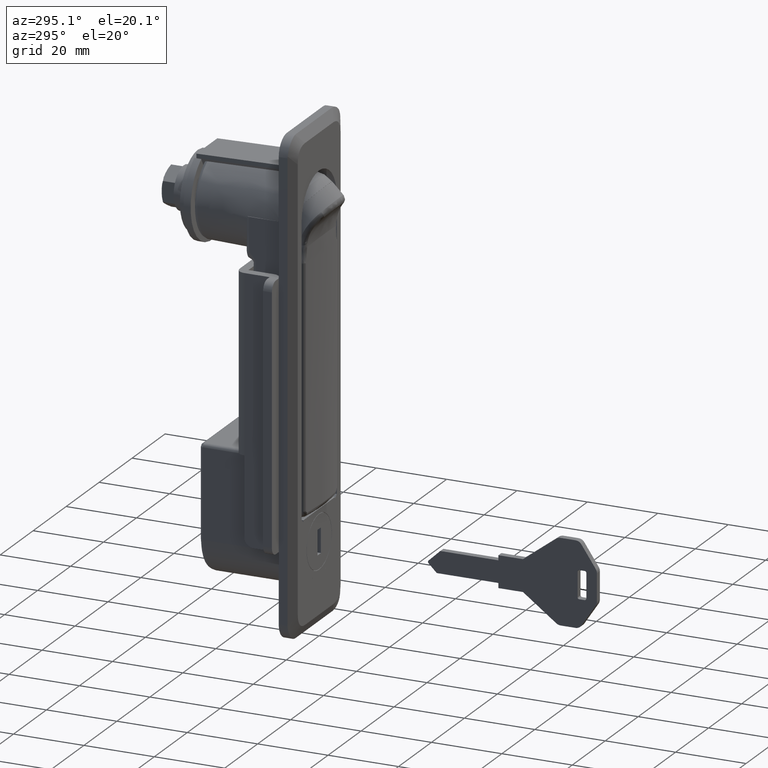
[diagram: clean part render]
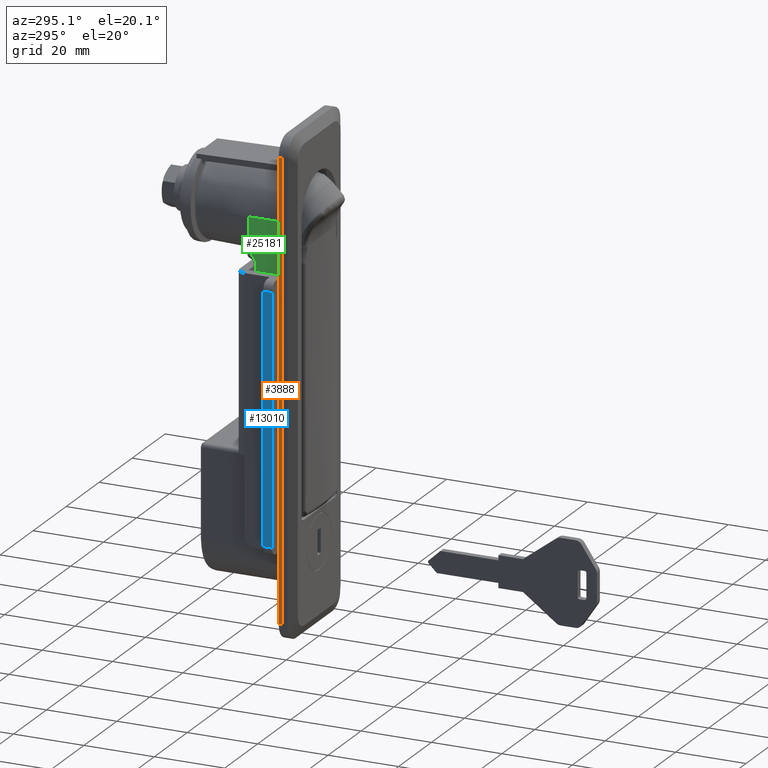
[diagram: same view with three faces highlighted in distinct colors, each labeled with its STEP entity id]
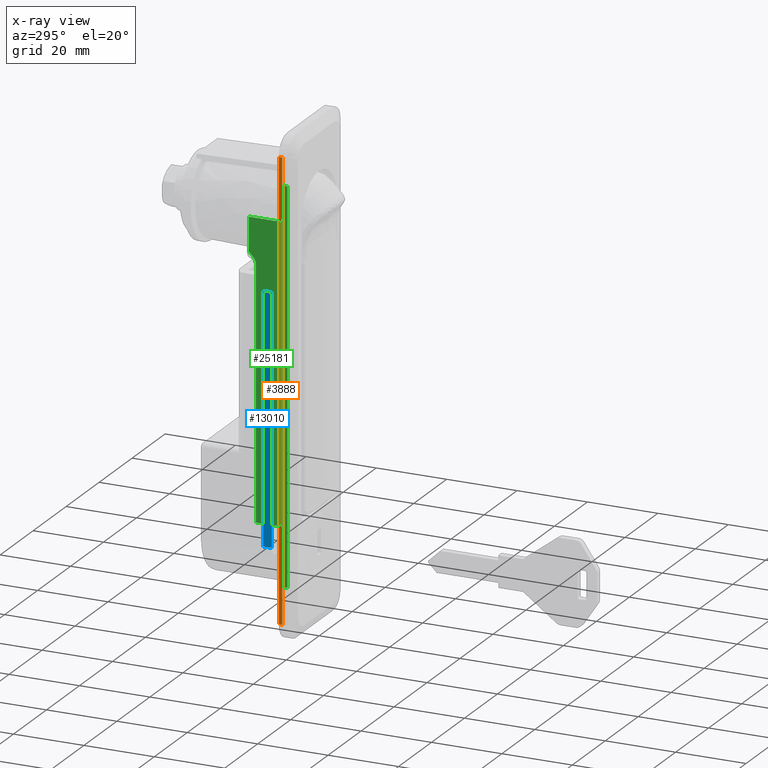
[diagram: x-ray of the same camera — body ghosted, the three highlighted faces saturated]
A machine part, auxiliary view with three faces highlighted in distinct colors.
The next image is the same camera in x-ray (body ghosted, the three faces saturated) — at least one of them is partly hidden behind the body in this view.
Their STEP definitions:

[orange] entity #3888 — the highlighted face is a freeform B-spline surface patch.
#3481=CARTESIAN_POINT('',(2.999999999999890,16.0,19.0));
#3482=VERTEX_POINT('',#3481);
#3497=CARTESIAN_POINT('',(2.999999999999890,16.0,-109.0));
#3498=VERTEX_POINT('',#3497);
#3499=CARTESIAN_POINT('',(2.999999999999890,16.0,-109.0));
#3500=CARTESIAN_POINT('',(2.999999999999890,16.0,19.0));
#3501=QUASI_UNIFORM_CURVE('',1,(#3499,#3500),.UNSPECIFIED.,.F.,.U.);
#3502=EDGE_CURVE('',#3498,#3482,#3501,.T.);
#3703=CARTESIAN_POINT('',(3.999999999999895,16.0,-109.0));
#3704=VERTEX_POINT('',#3703);
#3717=CARTESIAN_POINT('',(3.999999999999895,16.0,19.0));
#3718=VERTEX_POINT('',#3717);
#3719=CARTESIAN_POINT('',(3.999999999999895,16.0,-109.0));
#3720=CARTESIAN_POINT('',(3.999999999999895,16.0,19.0));
#3721=QUASI_UNIFORM_CURVE('',1,(#3719,#3720),.UNSPECIFIED.,.F.,.U.);
#3722=EDGE_CURVE('',#3704,#3718,#3721,.T.);
#3865=CARTESIAN_POINT('',(3.999999999999895,16.0,19.0));
#3866=CARTESIAN_POINT('',(2.999999999999890,16.0,19.0));
#3867=QUASI_UNIFORM_CURVE('',1,(#3865,#3866),.UNSPECIFIED.,.F.,.U.);
#3868=EDGE_CURVE('',#3718,#3482,#3867,.T.);
#3873=CARTESIAN_POINT('',(2.950050001938084,16.0,25.393599751911161));
#3874=CARTESIAN_POINT('',(2.950050001938084,16.0,-115.393603185138700));
#3875=CARTESIAN_POINT('',(4.049950024883793,16.0,25.393599751911161));
#3876=CARTESIAN_POINT('',(4.049950024883793,16.0,-115.393603185138700));
#3877=B_SPLINE_SURFACE_WITH_KNOTS('',1,1,((#3873,#3875),(#3874,#3876)),.UNSPECIFIED.,.F.,.F.,.U.,(2,2),(2,2),(0.0,140.787202937049900),(0.041708334948495,0.958291687403247),.UNSPECIFIED.);
#3878=ORIENTED_EDGE('',*,*,#3502,.T.);
#3879=ORIENTED_EDGE('',*,*,#3868,.F.);
#3880=ORIENTED_EDGE('',*,*,#3722,.F.);
#3881=CARTESIAN_POINT('',(3.999999999999895,16.0,-109.0));
#3882=CARTESIAN_POINT('',(2.999999999999890,16.0,-109.0));
#3883=QUASI_UNIFORM_CURVE('',1,(#3881,#3882),.UNSPECIFIED.,.F.,.U.);
#3884=EDGE_CURVE('',#3704,#3498,#3883,.T.);
#3885=ORIENTED_EDGE('',*,*,#3884,.T.);
#3886=EDGE_LOOP('',(#3878,#3879,#3880,#3885));
#3887=FACE_OUTER_BOUND('',#3886,.T.);
#3888=ADVANCED_FACE('',(#3887),#3877,.F.);

[blue] entity #13010 — the highlighted face is a freeform B-spline surface patch.
#12660=CARTESIAN_POINT('',(6.800000000000000,19.500000000000000,-87.0));
#12661=VERTEX_POINT('',#12660);
#12680=CARTESIAN_POINT('',(4.299999999999950,19.500000000000000,-87.0));
#12681=VERTEX_POINT('',#12680);
#12693=CARTESIAN_POINT('',(6.800000000000000,19.500000000000000,-87.0));
#12694=CARTESIAN_POINT('',(4.299999999999950,19.500000000000000,-87.0));
#12695=QUASI_UNIFORM_CURVE('',1,(#12693,#12694),.UNSPECIFIED.,.F.,.U.);
#12696=EDGE_CURVE('',#12661,#12681,#12695,.T.);
#12715=CARTESIAN_POINT('',(6.800000000000000,19.500000000000000,-17.0));
#12716=VERTEX_POINT('',#12715);
#12730=CARTESIAN_POINT('',(4.299999999999950,19.500000000000000,-17.0));
#12731=VERTEX_POINT('',#12730);
#12732=CARTESIAN_POINT('',(4.299999999999950,19.500000000000000,-17.0));
#12733=CARTESIAN_POINT('',(6.800000000000000,19.500000000000000,-17.0));
#12734=QUASI_UNIFORM_CURVE('',1,(#12732,#12733),.UNSPECIFIED.,.F.,.U.);
#12735=EDGE_CURVE('',#12731,#12716,#12734,.T.);
#12991=CARTESIAN_POINT('',(4.175125183659366,19.500000000000000,-90.496499864326438));
#12992=CARTESIAN_POINT('',(4.175125183659366,19.500000000000000,-13.503498258127269));
#12993=CARTESIAN_POINT('',(6.924875241023678,19.500000000000000,-90.496499864326438));
#12994=CARTESIAN_POINT('',(6.924875241023678,19.500000000000000,-13.503498258127269));
#12995=B_SPLINE_SURFACE_WITH_KNOTS('',1,1,((#12991,#12993),(#12992,#12994)),.UNSPECIFIED.,.F.,.F.,.U.,(2,2),(2,2),(0.0,76.993001606199158),(0.0,2.749750057364311),.UNSPECIFIED.);
#12996=CARTESIAN_POINT('',(4.299999999999950,19.500000000000000,-87.0));
#12997=CARTESIAN_POINT('',(4.299999999999950,19.500000000000000,-17.0));
#12998=QUASI_UNIFORM_CURVE('',1,(#12996,#12997),.UNSPECIFIED.,.F.,.U.);
#12999=EDGE_CURVE('',#12681,#12731,#12998,.T.);
#13000=ORIENTED_EDGE('',*,*,#12999,.T.);
#13001=ORIENTED_EDGE('',*,*,#12735,.T.);
#13002=CARTESIAN_POINT('',(6.800000000000000,19.500000000000000,-87.0));
#13003=CARTESIAN_POINT('',(6.800000000000000,19.500000000000000,-17.0));
#13004=QUASI_UNIFORM_CURVE('',1,(#13002,#13003),.UNSPECIFIED.,.F.,.U.);
#13005=EDGE_CURVE('',#12661,#12716,#13004,.T.);
#13006=ORIENTED_EDGE('',*,*,#13005,.F.);
#13007=ORIENTED_EDGE('',*,*,#12696,.T.);
#13008=EDGE_LOOP('',(#13000,#13001,#13006,#13007));
#13009=FACE_OUTER_BOUND('',#13008,.T.);
#13010=ADVANCED_FACE('',(#13009),#12995,.T.);

[green] entity #25181 — the highlighted face is a freeform B-spline surface patch.
#17495=CARTESIAN_POINT('',(3.999999999999895,12.699999999999999,-83.500000000000000));
#17496=VERTEX_POINT('',#17495);
#17514=CARTESIAN_POINT('',(12.0,12.699999999999999,-83.500000000000000));
#17515=VERTEX_POINT('',#17514);
#17516=CARTESIAN_POINT('',(12.0,12.699999999999999,-83.500000000000000));
#17517=CARTESIAN_POINT('',(3.999999999999895,12.699999999999999,-83.500000000000000));
#17518=QUASI_UNIFORM_CURVE('',1,(#17516,#17517),.UNSPECIFIED.,.F.,.U.);
#17519=EDGE_CURVE('',#17515,#17496,#17518,.T.);
#17638=CARTESIAN_POINT('',(12.0,12.699999999999999,-65.611039313127293));
#17639=VERTEX_POINT('',#17638);
#17657=CARTESIAN_POINT('',(12.0,12.699999999999999,-65.611039313127293));
#17658=CARTESIAN_POINT('',(12.0,12.699999999999999,-83.500000000000000));
#17659=QUASI_UNIFORM_CURVE('',1,(#17657,#17658),.UNSPECIFIED.,.F.,.U.);
#17660=EDGE_CURVE('',#17639,#17515,#17659,.T.);
#18238=CARTESIAN_POINT('',(12.0,12.699999999999999,-64.215006999271097));
#18239=VERTEX_POINT('',#18238);
#18240=CARTESIAN_POINT('',(12.0,12.699999999999999,-64.215006999271097));
#18241=CARTESIAN_POINT('',(11.999999999999780,12.699999999999999,-64.447794729978639));
#18242=CARTESIAN_POINT('',(12.017000941096139,12.700000000000010,-64.680273525742322));
#18243=CARTESIAN_POINT('',(12.019716545237531,12.699999999999999,-64.971106120292546));
#18244=CARTESIAN_POINT('',(12.019385031996910,12.700000000000010,-65.029282980017740));
#18245=CARTESIAN_POINT('',(12.016941976421130,12.700000000000010,-65.145657744785822));
#18246=CARTESIAN_POINT('',(12.014825902813261,12.699999999999990,-65.203840158557284));
#18247=CARTESIAN_POINT('',(12.007187403684510,12.699999999999990,-65.378308523031691));
#18248=CARTESIAN_POINT('',(12.000000000000030,12.699999999999999,-65.494546459962848));
#18249=CARTESIAN_POINT('',(12.0,12.699999999999999,-65.611039313127293));
#18250=B_SPLINE_CURVE_WITH_KNOTS('',3,(#18240,#18241,#18242,#18243,#18244,#18245,#18246,#18247,#18248,#18249),.UNSPECIFIED.,.F.,.U.,(4,2,2,2,4),(0.0,0.500000000000015,0.625000000000011,0.750000000000007,1.0),.UNSPECIFIED.);
#18251=EDGE_CURVE('',#18239,#17639,#18250,.T.);
#18279=CARTESIAN_POINT('',(12.0,12.699999999999999,-12.965496902349360));
#18280=VERTEX_POINT('',#18279);
#18299=CARTESIAN_POINT('',(12.0,12.699999999999999,-12.965496902349360));
#18300=CARTESIAN_POINT('',(12.0,12.699999999999999,-64.215006999271097));
#18301=QUASI_UNIFORM_CURVE('',1,(#18299,#18300),.UNSPECIFIED.,.F.,.U.);
#18302=EDGE_CURVE('',#18280,#18239,#18301,.T.);
#18345=CARTESIAN_POINT('',(14.0,12.699999999999999,-9.500550988070220));
#18346=VERTEX_POINT('',#18345);
#18347=CARTESIAN_POINT('',(14.0,12.699999999999999,-9.500550988070220));
#18348=CARTESIAN_POINT('',(13.969840089064091,12.700000000000010,-9.530725674284849));
#18349=CARTESIAN_POINT('',(13.939385235763030,12.699999999999999,-9.561195278964279));
#18350=CARTESIAN_POINT('',(13.878785051164311,12.699999999999999,-9.621918992891539));
#18351=CARTESIAN_POINT('',(13.787958459379061,12.699999999999990,-9.713071850508870));
#18352=CARTESIAN_POINT('',(13.577061640802039,12.699999999999999,-9.926704143396558));
#18353=CARTESIAN_POINT('',(13.399826768679871,12.699999999999999,-10.113044509625070));
#18354=CARTESIAN_POINT('',(13.169783154511119,12.699999999999999,-10.367223468802900));
#18355=CARTESIAN_POINT('',(13.057891128191100,12.699999999999990,-10.497170957207890));
#18356=CARTESIAN_POINT('',(12.897141532544230,12.699999999999999,-10.698565114436210));
#18357=CARTESIAN_POINT('',(12.844663078513920,12.699999999999999,-10.766886792518751));
#18358=CARTESIAN_POINT('',(12.743051477081680,12.699999999999990,-10.905296793872530));
#18359=CARTESIAN_POINT('',(12.693884981603180,12.699999999999999,-10.975417839613730));
#18360=CARTESIAN_POINT('',(12.551922686052441,12.699999999999999,-11.188875163486459));
#18361=CARTESIAN_POINT('',(12.464647855976160,12.699999999999990,-11.335296564021640));
#18362=CARTESIAN_POINT('',(12.308312208260899,12.699999999999999,-11.638317369658539));
#18363=CARTESIAN_POINT('',(12.239214583526820,12.699999999999990,-11.794896206926380));
#18364=CARTESIAN_POINT('',(12.123606508889869,12.699999999999999,-12.120675612635701));
#18365=CARTESIAN_POINT('',(12.078486811021360,12.699999999999990,-12.286101634003920));
#18366=CARTESIAN_POINT('',(12.016740548102650,12.699999999999990,-12.621778359709250));
#18367=CARTESIAN_POINT('',(12.0,12.699999999999999,-12.792141994044320));
#18368=CARTESIAN_POINT('',(12.0,12.699999999999999,-12.965496902349360));
#18369=B_SPLINE_CURVE_WITH_KNOTS('',3,(#18347,#18348,#18349,#18350,#18351,#18352,#18353,#18354,#18355,#18356,#18357,#18358,#18359,#18360,#18361,#18362,#18363,#18364,#18365,#18366,#18367,#18368),.UNSPECIFIED.,.F.,.U.,(4,2,1,1,2,2,2,2,2,2,2,4),(0.0,0.031250000000000,0.062500000000000,0.125000000000001,0.250000000000002,0.375000000000002,0.437500000000002,0.500000000000002,0.625000000000002,0.750000000000001,0.875000000000001,1.0),.UNSPECIFIED.);
#18370=EDGE_CURVE('',#18346,#18280,#18369,.T.);
#20417=CARTESIAN_POINT('',(3.999999999999915,12.699999999999999,0.749208505190909));
#20418=VERTEX_POINT('',#20417);
#20458=CARTESIAN_POINT('',(3.999999999999895,12.699999999999999,10.0));
#20459=VERTEX_POINT('',#20458);
#20460=CARTESIAN_POINT('',(3.999999999999895,12.699999999999999,10.0));
#20461=CARTESIAN_POINT('',(3.999999999999915,12.699999999999999,0.749208505190909));
#20462=QUASI_UNIFORM_CURVE('',1,(#20460,#20461),.UNSPECIFIED.,.F.,.U.);
#20463=EDGE_CURVE('',#20459,#20418,#20462,.T.);
#20935=CARTESIAN_POINT('',(3.999999999999895,12.699999999999999,-100.0));
#20936=VERTEX_POINT('',#20935);
#20989=CARTESIAN_POINT('',(3.999999999999895,12.699999999999999,-83.500000000000000));
#20990=CARTESIAN_POINT('',(3.999999999999895,12.699999999999999,-100.0));
#20991=QUASI_UNIFORM_CURVE('',1,(#20989,#20990),.UNSPECIFIED.,.F.,.U.);
#20992=EDGE_CURVE('',#17496,#20936,#20991,.T.);
#21030=CARTESIAN_POINT('',(14.0,12.699999999999999,0.0));
#21031=VERTEX_POINT('',#21030);
#21032=CARTESIAN_POINT('',(14.0,12.699999999999999,0.0));
#21033=CARTESIAN_POINT('',(14.0,12.699999999999999,-9.500550988070220));
#21034=QUASI_UNIFORM_CURVE('',1,(#21032,#21033),.UNSPECIFIED.,.F.,.U.);
#21035=EDGE_CURVE('',#21031,#18346,#21034,.T.);
#25071=CARTESIAN_POINT('',(4.999999999999920,12.699999999999999,6.008451E-016));
#25072=VERTEX_POINT('',#25071);
#25079=CARTESIAN_POINT('',(4.999999999999920,12.699999999999999,6.008451E-016));
#25080=CARTESIAN_POINT('',(14.0,12.699999999999999,0.0));
#25081=QUASI_UNIFORM_CURVE('',1,(#25079,#25080),.UNSPECIFIED.,.F.,.U.);
#25082=EDGE_CURVE('',#25072,#21031,#25081,.T.);
#25109=CARTESIAN_POINT('',(2.999999999999890,12.699999999999999,10.0));
#25110=VERTEX_POINT('',#25109);
#25111=CARTESIAN_POINT('',(2.999999999999890,12.699999999999999,10.0));
#25112=CARTESIAN_POINT('',(3.999999999999895,12.699999999999999,10.0));
#25113=QUASI_UNIFORM_CURVE('',1,(#25111,#25112),.UNSPECIFIED.,.F.,.U.);
#25114=EDGE_CURVE('',#25110,#20459,#25113,.T.);
#25131=CARTESIAN_POINT('',(2.450550021320018,12.699999999999999,-105.494499786798700));
#25132=CARTESIAN_POINT('',(2.450550021320018,12.699999999999999,15.494502737228579));
#25133=CARTESIAN_POINT('',(14.549450273722860,12.699999999999999,-105.494499786798700));
#25134=CARTESIAN_POINT('',(14.549450273722860,12.699999999999999,15.494502737228579));
#25135=B_SPLINE_SURFACE_WITH_KNOTS('',1,1,((#25131,#25133),(#25132,#25134)),.UNSPECIFIED.,.F.,.F.,.U.,(2,2),(2,2),(0.0,120.989002524027200),(0.0,12.098900252402849),.UNSPECIFIED.);
#25136=ORIENTED_EDGE('',*,*,#17519,.T.);
#25137=ORIENTED_EDGE('',*,*,#20992,.T.);
#25138=CARTESIAN_POINT('',(2.999999999999890,12.699999999999999,-100.0));
#25139=VERTEX_POINT('',#25138);
#25140=CARTESIAN_POINT('',(2.999999999999890,12.699999999999999,-100.0));
#25141=CARTESIAN_POINT('',(3.999999999999895,12.699999999999999,-100.0));
#25142=QUASI_UNIFORM_CURVE('',1,(#25140,#25141),.UNSPECIFIED.,.F.,.U.);
#25143=EDGE_CURVE('',#25139,#20936,#25142,.T.);
#25144=ORIENTED_EDGE('',*,*,#25143,.F.);
#25145=CARTESIAN_POINT('',(2.999999999999890,12.699999999999999,-100.0));
#25146=CARTESIAN_POINT('',(2.999999999999890,12.699999999999999,10.0));
#25147=QUASI_UNIFORM_CURVE('',1,(#25145,#25146),.UNSPECIFIED.,.F.,.U.);
#25148=EDGE_CURVE('',#25139,#25110,#25147,.T.);
#25149=ORIENTED_EDGE('',*,*,#25148,.T.);
#25150=ORIENTED_EDGE('',*,*,#25114,.T.);
#25151=ORIENTED_EDGE('',*,*,#20463,.T.);
#25152=CARTESIAN_POINT('',(3.999999999999915,12.699999999999999,0.749208505190909));
#25153=CARTESIAN_POINT('',(4.102090210267470,12.699999999999999,0.710931862833586));
#25154=CARTESIAN_POINT('',(4.203152838912592,12.699999999999990,0.670214853895101));
#25155=CARTESIAN_POINT('',(4.401993368426815,12.699999999999990,0.580980054340235));
#25156=CARTESIAN_POINT('',(4.499858481016479,12.699999999999999,0.532584495056701));
#25157=CARTESIAN_POINT('',(4.640500300201304,12.699999999999990,0.449930813113395));
#25158=CARTESIAN_POINT('',(4.686384688705428,12.699999999999990,0.420658593384117));
#25159=CARTESIAN_POINT('',(4.775012078274853,12.699999999999999,0.356687325112173));
#25160=CARTESIAN_POINT('',(4.817400392054838,12.699999999999999,0.322328885585104));
#25161=CARTESIAN_POINT('',(4.875695178894694,12.699999999999999,0.264743574288971));
#25162=CARTESIAN_POINT('',(4.894208279061824,12.699999999999999,0.244510781307249));
#25163=CARTESIAN_POINT('',(4.927969953541010,12.699999999999999,0.202109314315358));
#25164=CARTESIAN_POINT('',(4.943320959049096,12.699999999999999,0.179863429589531));
#25165=CARTESIAN_POINT('',(4.969728420514831,12.699999999999990,0.132437707565196));
#25166=CARTESIAN_POINT('',(4.980863518243415,12.699999999999990,0.106845140906051));
#25167=CARTESIAN_POINT('',(4.995911312582659,12.699999999999999,0.054557505671267));
#25168=CARTESIAN_POINT('',(4.999999999999891,12.699999999999999,0.027702181074738));
#25169=CARTESIAN_POINT('',(4.999999999999920,12.699999999999999,6.008451E-016));
#25170=B_SPLINE_CURVE_WITH_KNOTS('',3,(#25152,#25153,#25154,#25155,#25156,#25157,#25158,#25159,#25160,#25161,#25162,#25163,#25164,#25165,#25166,#25167,#25168,#25169),.UNSPECIFIED.,.F.,.U.,(4,2,2,2,2,2,2,2,4),(0.0,0.249999999999998,0.499999999999997,0.624999999999997,0.749999999999997,0.812499999999998,0.874999999999998,0.937499999999999,1.0),.UNSPECIFIED.);
#25171=EDGE_CURVE('',#20418,#25072,#25170,.T.);
#25172=ORIENTED_EDGE('',*,*,#25171,.T.);
#25173=ORIENTED_EDGE('',*,*,#25082,.T.);
#25174=ORIENTED_EDGE('',*,*,#21035,.T.);
#25175=ORIENTED_EDGE('',*,*,#18370,.T.);
#25176=ORIENTED_EDGE('',*,*,#18302,.T.);
#25177=ORIENTED_EDGE('',*,*,#18251,.T.);
#25178=ORIENTED_EDGE('',*,*,#17660,.T.);
#25179=EDGE_LOOP('',(#25136,#25137,#25144,#25149,#25150,#25151,#25172,#25173,#25174,#25175,#25176,#25177,#25178));
#25180=FACE_OUTER_BOUND('',#25179,.T.);
#25181=ADVANCED_FACE('',(#25180),#25135,.T.);